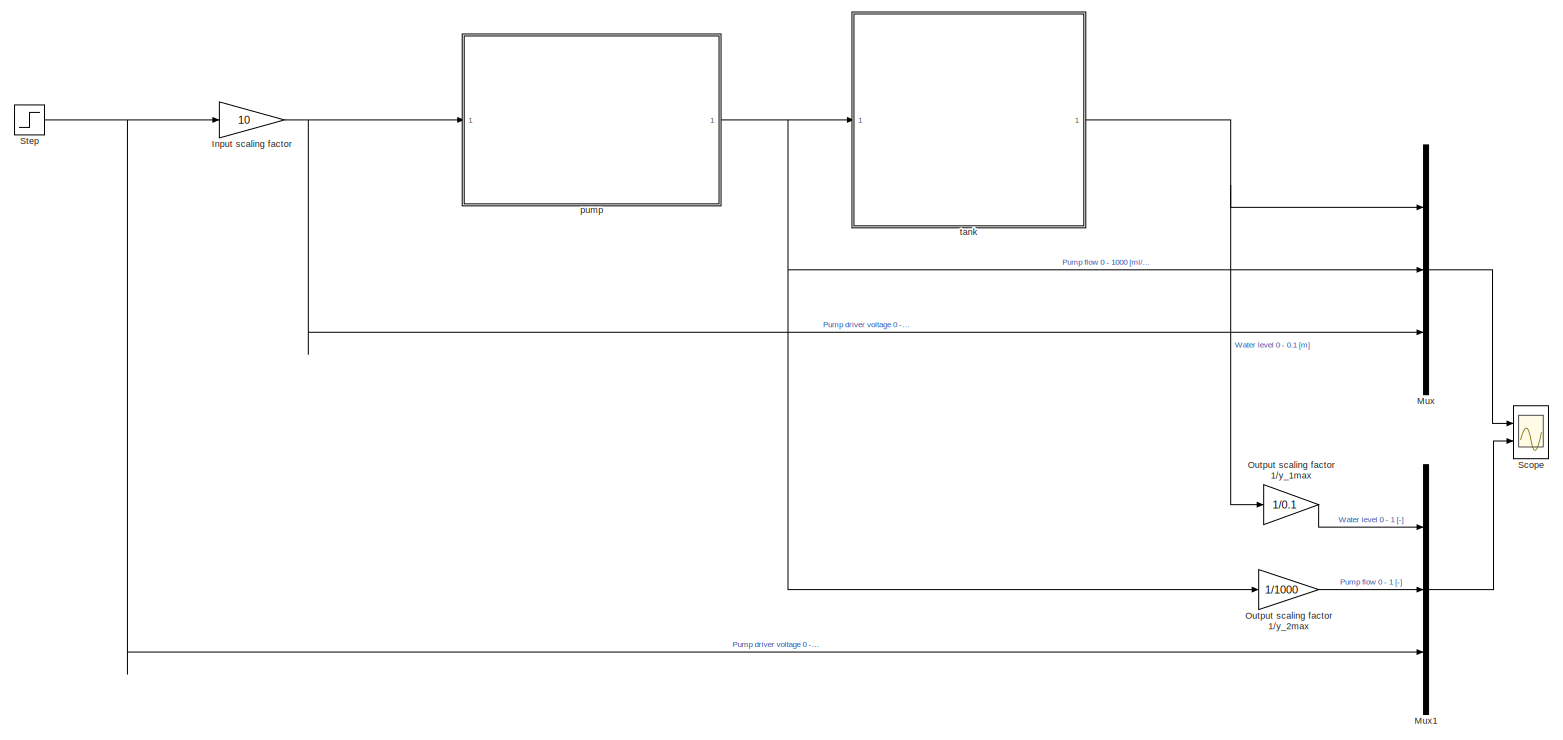
[diagram: root canvas - part 1/1, most of the canvas]
MODEL slx_12ff52c51e21
KIND model
CONFIG AbsTol = auto
CONFIG EnableMultiTasking = off
CONFIG FixedStep = auto
CONFIG MaxStep = auto
CONFIG MinStep = auto
CONFIG RelTol = 1e-3
CONFIG SampleTimeConstraint = Unconstrained
CONFIG Solver = VariableStepAuto
CONFIG SolverName = VariableStepAuto
CONFIG StartTime = 0.0
CONFIG StopTime = 60
BLOCK [Gain] Input scaling factor
  Gain = 10
  OutDataTypeStr = Inherit: Inherit via internal rule
  ParamDataTypeStr = Inherit: Inherit via internal rule
  SaturateOnIntegerOverflow = off
BLOCK [Mux] Mux
  DisplayOption = bar
  Inputs = 3
  Ports = [3, 1]
BLOCK [Mux] Mux1
  DisplayOption = bar
  Inputs = 3
  Ports = [3, 1]
BLOCK [Gain] Output scaling factor 1//y_1max
  Gain = 1/0.1
  OutDataTypeStr = Inherit: Inherit via internal rule
  ParamDataTypeStr = Inherit: Inherit via internal rule
  SaturateOnIntegerOverflow = off
BLOCK [Gain] Output scaling factor 1//y_2max
  Gain = 1/1000
  OutDataTypeStr = Inherit: Inherit via internal rule
  ParamDataTypeStr = Inherit: Inherit via internal rule
  SaturateOnIntegerOverflow = off
BLOCK [Scope] Scope
  Floating = off
  NumInputPorts = 2
  Ports = [2]
  ScopeSpecificationString = Simulink.scopes.TimeScopeBlockCfg('CurrentConfiguration', extmgr.ConfigurationSet(extmgr.Configuration('Core','General UI',true),extmgr.Configuration('Core','Source UI',true),extmgr.Configuration('Sources','WiredSimulink',true),extmgr.Configuration('Visuals','Time Domain',true,'SerializedDisplays',{struct('MinYLimReal','-61.55819','MaxYLimReal','554.02369','YLabelReal','','MinYLimMag','0.00000','M...<+2124ch>
BLOCK [Step] Step
  After = 0.5
  SampleTime = 0
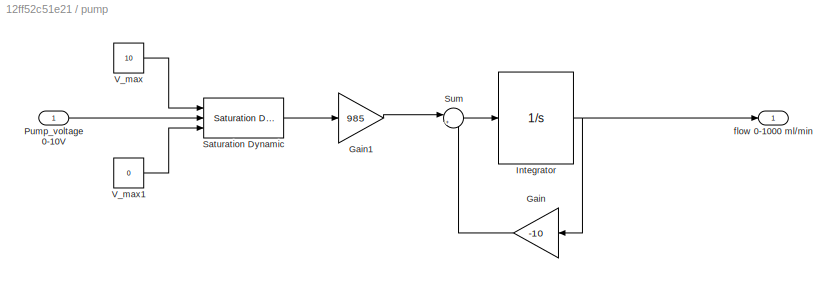
BLOCK [SubSystem] pump
  Ports = [1, 1]
  RequestExecContextInheritance = off
BLOCK [Gain] pump/Gain
  Gain = -10
  OutDataTypeStr = Inherit: Inherit via internal rule
  ParamDataTypeStr = Inherit: Inherit via internal rule
  SaturateOnIntegerOverflow = off
BLOCK [Gain] pump/Gain1
  Gain = 985
  OutDataTypeStr = Inherit: Inherit via internal rule
  ParamDataTypeStr = Inherit: Inherit via internal rule
  SaturateOnIntegerOverflow = off
BLOCK [Integrator] pump/Integrator
  LimitOutput = on
  LowerSaturationLimit = 0
  Ports = [1, 1]
  UpperSaturationLimit = 1000
BLOCK [Inport] pump/Pump_voltage 0-10V
  IconDisplay = Port number
BLOCK [Reference] pump/Saturation Dynamic  REF=simulink/Discontinuities/Saturation
Dynamic
  Ports = [3, 1]
  SourceBlock = simulink/Discontinuities/Saturation\nDynamic
  SourceProductBaseCode = SL
  SourceProductName = Simulink
  SourceType = Saturation Dynamic
BLOCK [Sum] pump/Sum
  IconShape = round
  InputSameDT = off
  Inputs = |++
  OutDataTypeStr = Inherit: Inherit via internal rule
  Ports = [2, 1]
  SaturateOnIntegerOverflow = off
BLOCK [Constant] pump/V_max
  Value = 10
BLOCK [Constant] pump/V_max1
  Value = 0
BLOCK [Outport] pump/flow 0-1000 ml//min
  IconDisplay = Port number
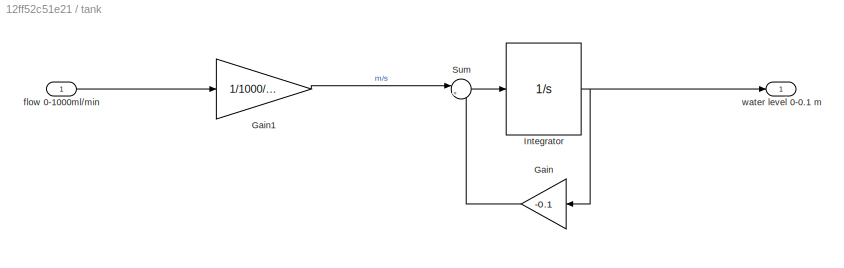
BLOCK [SubSystem] tank
  Ports = [1, 1]
  RequestExecContextInheritance = off
BLOCK [Gain] tank/Gain
  Gain = -0.1
  OutDataTypeStr = Inherit: Inherit via internal rule
  ParamDataTypeStr = Inherit: Inherit via internal rule
  SaturateOnIntegerOverflow = off
BLOCK [Gain] tank/Gain1
  Gain = 1/1000/60
  OutDataTypeStr = Inherit: Inherit via internal rule
  ParamDataTypeStr = Inherit: Inherit via internal rule
  SaturateOnIntegerOverflow = off
BLOCK [Integrator] tank/Integrator
  LimitOutput = on
  LowerSaturationLimit = 0
  Ports = [1, 1]
  UpperSaturationLimit = 0.1
BLOCK [Sum] tank/Sum
  IconShape = round
  InputSameDT = off
  Inputs = |++
  OutDataTypeStr = Inherit: Inherit via internal rule
  Ports = [2, 1]
  SaturateOnIntegerOverflow = off
BLOCK [Inport] tank/flow 0-1000ml//min
  IconDisplay = Port number
BLOCK [Outport] tank/water level 0-0.1 m
  IconDisplay = Port number
NET Input scaling factor:1 -> Mux:3, pump:1
LINE Mux1:1 -> Scope:2
LINE Mux:1 -> Scope:1
LINE Output scaling factor 1//y_1max:1 -> Mux1:1
LINE Output scaling factor 1//y_2max:1 -> Mux1:2
NET Step:1 -> Input scaling factor:1, Mux1:3
LINE pump/Gain1:1 -> pump/Sum:1
LINE pump/Gain:1 -> pump/Sum:2
NET pump/Integrator:1 -> pump/Gain:1, pump/flow 0-1000 ml//min:1
LINE pump/Pump_voltage 0-10V:1 -> pump/Saturation Dynamic:2
LINE pump/Saturation Dynamic:1 -> pump/Gain1:1
LINE pump/Sum:1 -> pump/Integrator:1
LINE pump/V_max1:1 -> pump/Saturation Dynamic:3
LINE pump/V_max:1 -> pump/Saturation Dynamic:1
NET pump:1 -> Mux:2, Output scaling factor 1//y_2max:1, tank:1
LINE tank/Gain1:1 -> tank/Sum:1
LINE tank/Gain:1 -> tank/Sum:2
NET tank/Integrator:1 -> tank/Gain:1, tank/water level 0-0.1 m:1
LINE tank/Sum:1 -> tank/Integrator:1
LINE tank/flow 0-1000ml//min:1 -> tank/Gain1:1
NET tank:1 -> Mux:1, Output scaling factor 1//y_1max:1
note: NET lines group one-source signal fan-out (src -> all destinations, sorted); 1:1 wires keep LINE
